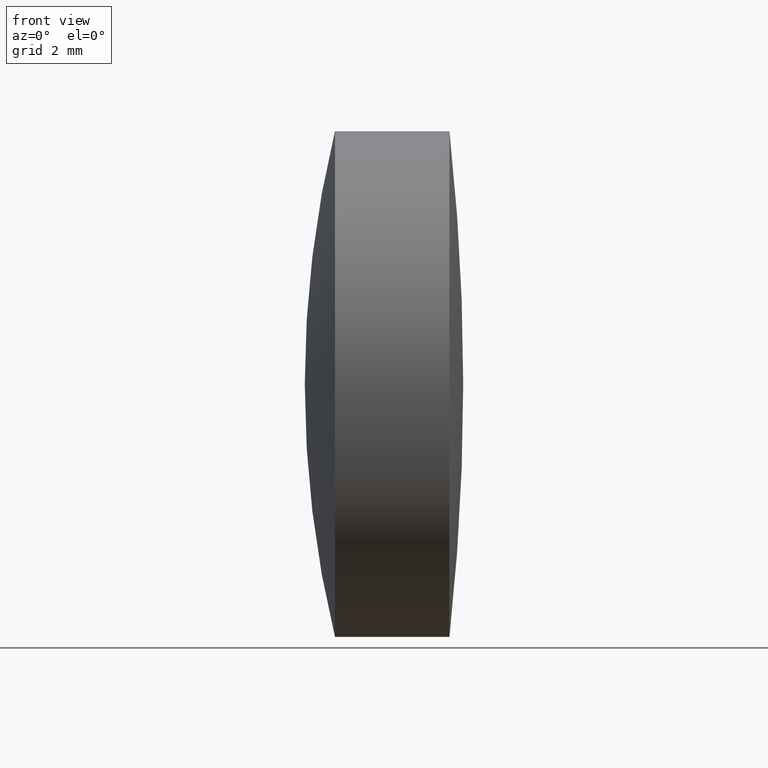
[diagram: clean part render]
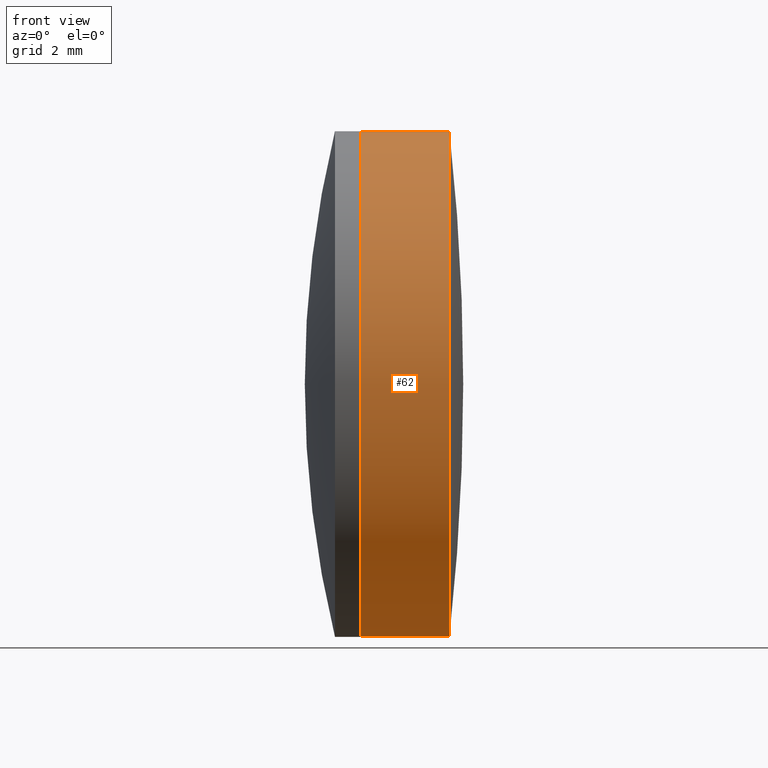
[diagram: same view with one face highlighted and labeled with its STEP entity id]
A machine part, front view. The second image highlights one B-rep face of the part: STEP entity #62.
In plain terms, the highlighted cylindrical surface (partial cylindrical patch) has radius 7.5 mm, axis along (-1, -0, -0).
Its self-contained STEP definition (entity closure, byte-faithful):
#2 = EDGE_CURVE ( 'NONE', #65, #75, #78, .T. ) ;
#22 = DIRECTION ( 'NONE',  ( -1.000000000000000000, -0.0000000000000000000, -0.0000000000000000000 ) ) ;
#25 = AXIS2_PLACEMENT_3D ( 'NONE', #73, #235, #68 ) ;
#43 = CARTESIAN_POINT ( 'NONE',  ( 16.40726006000681300, 0.0000000000000000000, 0.0000000000000000000 ) ) ;
#44 = AXIS2_PLACEMENT_3D ( 'NONE', #43, #67, #48 ) ;
#48 = DIRECTION ( 'NONE',  ( 0.0000000000000000000, 0.0000000000000000000, 1.000000000000000000 ) ) ;
#62 = ADVANCED_FACE ( 'NONE', ( #317 ), #332, .T. ) ;
#64 = CARTESIAN_POINT ( 'NONE',  ( 16.40726006000681300, 0.0000000000000000000, 7.499999999999992900 ) ) ;
#65 = VERTEX_POINT ( 'NONE', #64 ) ;
#67 = DIRECTION ( 'NONE',  ( -1.000000000000000000, -0.0000000000000000000, -0.0000000000000000000 ) ) ;
#68 = DIRECTION ( 'NONE',  ( 0.0000000000000000000, 0.0000000000000000000, 1.000000000000000000 ) ) ;
#70 = VECTOR ( 'NONE', #82, 1000.000000000000000 ) ;
#73 = CARTESIAN_POINT ( 'NONE',  ( 13.76976148905017200, 0.0000000000000000000, 0.0000000000000000000 ) ) ;
#74 = CIRCLE ( 'NONE', #25, 7.500000000000005300 ) ;
#75 = VERTEX_POINT ( 'NONE', #304 ) ;
#76 = CARTESIAN_POINT ( 'NONE',  ( 16.40726006000681300, 9.184850993605144000E-016, -7.499999999999992900 ) ) ;
#78 = LINE ( 'NONE', #230, #153 ) ;
#82 = DIRECTION ( 'NONE',  ( -1.000000000000000000, -0.0000000000000000000, -0.0000000000000000000 ) ) ;
#117 = CARTESIAN_POINT ( 'NONE',  ( 13.76976148905017200, 9.184850993605159800E-016, -7.500000000000007100 ) ) ;
#123 = EDGE_CURVE ( 'NONE', #315, #269, #150, .T. ) ;
#150 = LINE ( 'NONE', #206, #70 ) ;
#153 = VECTOR ( 'NONE', #22, 1000.000000000000000 ) ;
#175 = ORIENTED_EDGE ( 'NONE', *, *, #344, .F. ) ;
#190 = DIRECTION ( 'NONE',  ( 0.0000000000000000000, 0.0000000000000000000, 1.000000000000000000 ) ) ;
#197 = CIRCLE ( 'NONE', #44, 7.499999999999992900 ) ;
#201 = ORIENTED_EDGE ( 'NONE', *, *, #330, .T. ) ;
#206 = CARTESIAN_POINT ( 'NONE',  ( -0.5519199926577972300, 9.184850993605147900E-016, -7.499999999999999100 ) ) ;
#219 = AXIS2_PLACEMENT_3D ( 'NONE', #340, #255, #190 ) ;
#230 = CARTESIAN_POINT ( 'NONE',  ( -0.5519199926577972300, 0.0000000000000000000, 7.499999999999999100 ) ) ;
#234 = ORIENTED_EDGE ( 'NONE', *, *, #123, .F. ) ;
#235 = DIRECTION ( 'NONE',  ( -1.000000000000000000, -0.0000000000000000000, -0.0000000000000000000 ) ) ;
#240 = ORIENTED_EDGE ( 'NONE', *, *, #2, .T. ) ;
#245 = EDGE_LOOP ( 'NONE', ( #234, #201, #240, #175 ) ) ;
#255 = DIRECTION ( 'NONE',  ( -1.000000000000000000, -0.0000000000000000000, -0.0000000000000000000 ) ) ;
#269 = VERTEX_POINT ( 'NONE', #117 ) ;
#304 = CARTESIAN_POINT ( 'NONE',  ( 13.76976148905017200, 0.0000000000000000000, 7.500000000000007100 ) ) ;
#315 = VERTEX_POINT ( 'NONE', #76 ) ;
#317 = FACE_OUTER_BOUND ( 'NONE', #245, .T. ) ;
#330 = EDGE_CURVE ( 'NONE', #315, #65, #197, .T. ) ;
#332 = CYLINDRICAL_SURFACE ( 'NONE', #219, 7.499999999999999100 ) ;
#340 = CARTESIAN_POINT ( 'NONE',  ( -0.5519199926577972300, 0.0000000000000000000, 0.0000000000000000000 ) ) ;
#344 = EDGE_CURVE ( 'NONE', #269, #75, #74, .T. ) ;